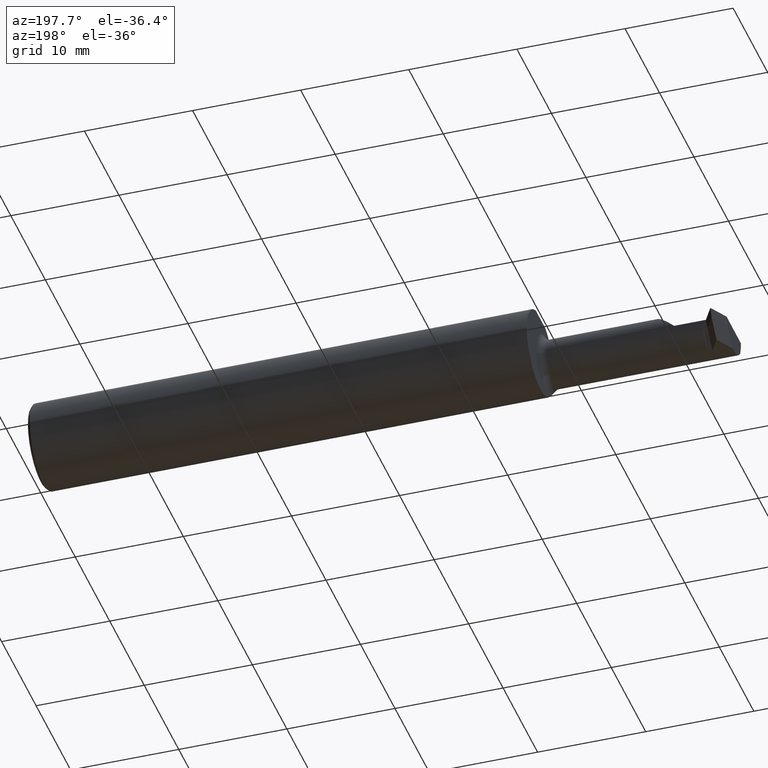
[diagram: clean part render]
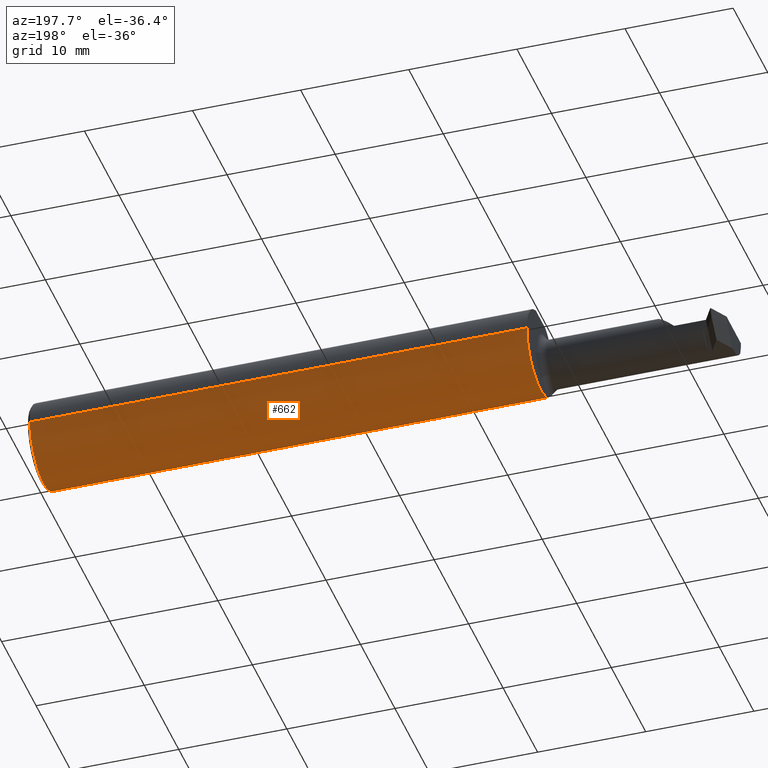
[diagram: same view with one face highlighted and labeled with its STEP entity id]
A machine part, auxiliary view. The second image highlights one B-rep face of the part: STEP entity #662.
In plain terms, the highlighted cylindrical surface (partial cylindrical patch) has radius 3.9649 mm, axis along (1, 0, -0).
Its self-contained STEP definition (entity closure, byte-faithful):
#23 = CARTESIAN_POINT ( 'NONE',  ( -1.820000000000000284, 0.1561000000000000443, 0.000000000000000000 ) ) ;
#29 = CARTESIAN_POINT ( 'NONE',  ( -2.500000000000000000, -0.1561000000000000720, 8.875653457662611807E-19 ) ) ;
#37 = DIRECTION ( 'NONE',  ( 1.000000000000000000, 1.224646799147352961E-16, -0.000000000000000000 ) ) ;
#93 = EDGE_CURVE ( 'NONE', #215, #534, #593, .T. ) ;
#100 = CARTESIAN_POINT ( 'NONE',  ( -1.835093217728559711, -0.1449997488157369341, -0.05785581108117096583 ) ) ;
#133 = ORIENTED_EDGE ( 'NONE', *, *, #368, .T. ) ;
#171 = VERTEX_POINT ( 'NONE', #315 ) ;
#177 = CARTESIAN_POINT ( 'NONE',  ( -1.823462366684950542, -0.1324922991513198256, -0.08274570526434622819 ) ) ;
#187 = VECTOR ( 'NONE', #827, 39.37007874015748143 ) ;
#198 = AXIS2_PLACEMENT_3D ( 'NONE', #782, #445, #424 ) ;
#215 = VERTEX_POINT ( 'NONE', #670 ) ;
#219 = CARTESIAN_POINT ( 'NONE',  ( -2.500000000000000000, -6.123233995736767268E-17, 0.000000000000000000 ) ) ;
#226 = CARTESIAN_POINT ( 'NONE',  ( -1.820000000000000284, -0.1142537450715595260, -0.1063639588254144813 ) ) ;
#230 = CARTESIAN_POINT ( 'NONE',  ( -2.500000000000000000, -0.1472695137976348934, -0.05175809410911740016 ) ) ;
#241 = EDGE_CURVE ( 'NONE', #676, #475, #665, .T. ) ;
#250 = CARTESIAN_POINT ( 'NONE',  ( -1.820000000000000284, 2.204364238465230892E-17, 0.000000000000000000 ) ) ;
#272 = CARTESIAN_POINT ( 'NONE',  ( -2.500000000000000000, -0.1561000000000000720, 8.875653457662609881E-19 ) ) ;
#302 = CARTESIAN_POINT ( 'NONE',  ( -2.500000000000000000, -6.123233995736767268E-17, 0.000000000000000000 ) ) ;
#304 = CARTESIAN_POINT ( 'NONE',  ( -1.833431488668993969, -0.1440181054450020148, -0.06027475888573605861 ) ) ;
#311 = CARTESIAN_POINT ( 'NONE',  ( -1.843446618368614676, -0.1472695137976343938, -0.05175809410911846181 ) ) ;
#315 = CARTESIAN_POINT ( 'NONE',  ( -1.845000000000000195, -0.1472695137976347268, -0.05175809410911797609 ) ) ;
#330 = EDGE_LOOP ( 'NONE', ( #570, #529, #869, #498, #573, #860, #133, #681 ) ) ;
#364 = CARTESIAN_POINT ( 'NONE',  ( -1.826939195357871082, -0.1382843393702950230, -0.07265330384103631245 ) ) ;
#368 = EDGE_CURVE ( 'NONE', #475, #215, #479, .T. ) ;
#369 = DIRECTION ( 'NONE',  ( 1.000000000000000000, 1.224646799147352961E-16, -0.000000000000000000 ) ) ;
#382 = CARTESIAN_POINT ( 'NONE',  ( -1.845000000000000195, -0.1472695137976347268, -0.05175809410911797609 ) ) ;
#386 = CARTESIAN_POINT ( 'NONE',  ( -2.133054491924311069, -0.1472695137976346713, -0.05175809410911787894 ) ) ;
#401 = DIRECTION ( 'NONE',  ( 1.000000000000000000, 1.224646799147352961E-16, -0.000000000000000000 ) ) ;
#417 = VECTOR ( 'NONE', #658, 39.37007874015748143 ) ;
#421 = CARTESIAN_POINT ( 'NONE',  ( -1.820000000000000284, -0.1142537450715595260, -0.1063639588254144813 ) ) ;
#424 = DIRECTION ( 'NONE',  ( -1.230512889522860364E-16, 1.000000000000000000, 0.000000000000000000 ) ) ;
#431 = DIRECTION ( 'NONE',  ( 0.000000000000000000, 1.000000000000000000, 0.000000000000000000 ) ) ;
#434 = EDGE_CURVE ( 'NONE', #465, #469, #538, .T. ) ;
#436 = CARTESIAN_POINT ( 'NONE',  ( -1.841958743194513470, -0.1470959753313503537, -0.05225520737744682870 ) ) ;
#439 = CARTESIAN_POINT ( 'NONE',  ( -1.819999999999965201, -0.1183915220908339505, -0.1019192528753024019 ) ) ;
#445 = DIRECTION ( 'NONE',  ( -1.000000000000000000, -1.224646799147319927E-16, 0.000000000000000000 ) ) ;
#454 = DIRECTION ( 'NONE',  ( 1.000000000000000000, 1.301231752219315598E-17, 0.000000000000000000 ) ) ;
#457 = AXIS2_PLACEMENT_3D ( 'NONE', #219, #783, #431 ) ;
#458 = DIRECTION ( 'NONE',  ( 0.000000000000000000, -1.000000000000000000, 0.000000000000000000 ) ) ;
#465 = VERTEX_POINT ( 'NONE', #29 ) ;
#469 = VERTEX_POINT ( 'NONE', #230 ) ;
#471 = EDGE_CURVE ( 'NONE', #469, #171, #704, .T. ) ;
#475 = VERTEX_POINT ( 'NONE', #23 ) ;
#479 = LINE ( 'NONE', #620, #610 ) ;
#498 = ORIENTED_EDGE ( 'NONE', *, *, #471, .T. ) ;
#511 = LINE ( 'NONE', #630, #577 ) ;
#514 = FACE_OUTER_BOUND ( 'NONE', #330, .T. ) ;
#521 = CARTESIAN_POINT ( 'NONE',  ( -1.838188662569929965, -0.1461994008685688351, -0.05471926711676252525 ) ) ;
#529 = ORIENTED_EDGE ( 'NONE', *, *, #582, .F. ) ;
#534 = VERTEX_POINT ( 'NONE', #855 ) ;
#538 = CIRCLE ( 'NONE', #565, 0.1561000000000000165 ) ;
#554 = EDGE_CURVE ( 'NONE', #171, #676, #752, .T. ) ;
#565 = AXIS2_PLACEMENT_3D ( 'NONE', #302, #369, #571 ) ;
#570 = ORIENTED_EDGE ( 'NONE', *, *, #778, .F. ) ;
#571 = DIRECTION ( 'NONE',  ( 0.000000000000000000, 1.000000000000000000, 0.000000000000000000 ) ) ;
#573 = ORIENTED_EDGE ( 'NONE', *, *, #554, .T. ) ;
#577 = VECTOR ( 'NONE', #37, 39.37007874015748143 ) ;
#582 = EDGE_CURVE ( 'NONE', #465, #638, #817, .T. ) ;
#591 = CARTESIAN_POINT ( 'NONE',  ( -1.839346208252526926, -0.1465601710296003390, -0.05373964015989960569 ) ) ;
#593 = CIRCLE ( 'NONE', #198, 0.1561000000000000165 ) ;
#610 = VECTOR ( 'NONE', #401, 39.37007874015748143 ) ;
#620 = CARTESIAN_POINT ( 'NONE',  ( -2.500000000000000000, 0.1560999999999999333, 0.000000000000000000 ) ) ;
#630 = CARTESIAN_POINT ( 'NONE',  ( -2.500000000000000000, -0.1561000000000000720, 1.911673653469018376E-17 ) ) ;
#638 = VERTEX_POINT ( 'NONE', #748 ) ;
#641 = CARTESIAN_POINT ( 'NONE',  ( -1.820462611252523732, -0.1222547939313150256, -0.09724325067964829927 ) ) ;
#658 = DIRECTION ( 'NONE',  ( 1.000000000000000000, 1.301231752219315598E-17, 0.000000000000000000 ) ) ;
#662 = ADVANCED_FACE ( 'NONE', ( #514 ), #773, .T. ) ;
#665 = CIRCLE ( 'NONE', #769, 0.1561000000000000165 ) ;
#670 = CARTESIAN_POINT ( 'NONE',  ( -0.009999999999999092948, 0.1561000000000002386, 0.000000000000000000 ) ) ;
#676 = VERTEX_POINT ( 'NONE', #421 ) ;
#681 = ORIENTED_EDGE ( 'NONE', *, *, #93, .T. ) ;
#704 = LINE ( 'NONE', #386, #417 ) ;
#725 = CARTESIAN_POINT ( 'NONE',  ( -1.822196101700324533, -0.1292903952771553844, -0.08767256201919806924 ) ) ;
#748 = CARTESIAN_POINT ( 'NONE',  ( -2.310000000000000053, -0.1561000000000000998, 0.000000000000000000 ) ) ;
#752 = B_SPLINE_CURVE_WITH_KNOTS ( 'NONE', 3,
 ( #382, #311, #436, #591, #521, #100, #304, #843, #364, #177, #725, #641, #439, #226 ),
 .UNSPECIFIED., .F., .F.,
 ( 4, 2, 2, 2, 2, 2, 4 ),
 ( 1.961733332188614115E-07, 0.0001163117065468482683, 0.0002324272397604776688, 0.0004646583061877505101, 0.0009291204390422855676, 0.001393582571896820679, 0.001858044704751356116 ),
 .UNSPECIFIED. ) ;
#769 = AXIS2_PLACEMENT_3D ( 'NONE', #250, #454, #458 ) ;
#773 = CYLINDRICAL_SURFACE ( 'NONE', #457, 0.1561000000000000165 ) ;
#778 = EDGE_CURVE ( 'NONE', #638, #534, #511, .T. ) ;
#782 = CARTESIAN_POINT ( 'NONE',  ( -0.009999999999999073866, 2.437047130303233649E-16, 0.000000000000000000 ) ) ;
#783 = DIRECTION ( 'NONE',  ( 1.000000000000000000, 1.224646799147352961E-16, -0.000000000000000000 ) ) ;
#817 = LINE ( 'NONE', #272, #187 ) ;
#827 = DIRECTION ( 'NONE',  ( 1.000000000000000000, 1.224646799147352961E-16, -0.000000000000000000 ) ) ;
#843 = CARTESIAN_POINT ( 'NONE',  ( -1.829076445919353144, -0.1408180008929574845, -0.06757000550034260311 ) ) ;
#855 = CARTESIAN_POINT ( 'NONE',  ( -0.009999999999999054784, -0.1560999999999997667, 1.911673653469018376E-17 ) ) ;
#860 = ORIENTED_EDGE ( 'NONE', *, *, #241, .T. ) ;
#869 = ORIENTED_EDGE ( 'NONE', *, *, #434, .T. ) ;